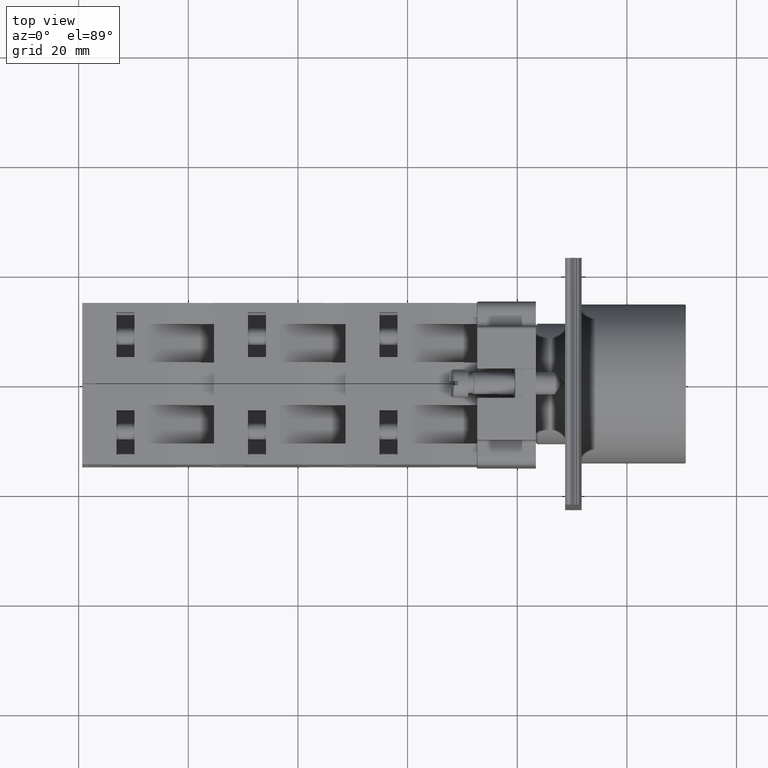
[diagram: clean part render]
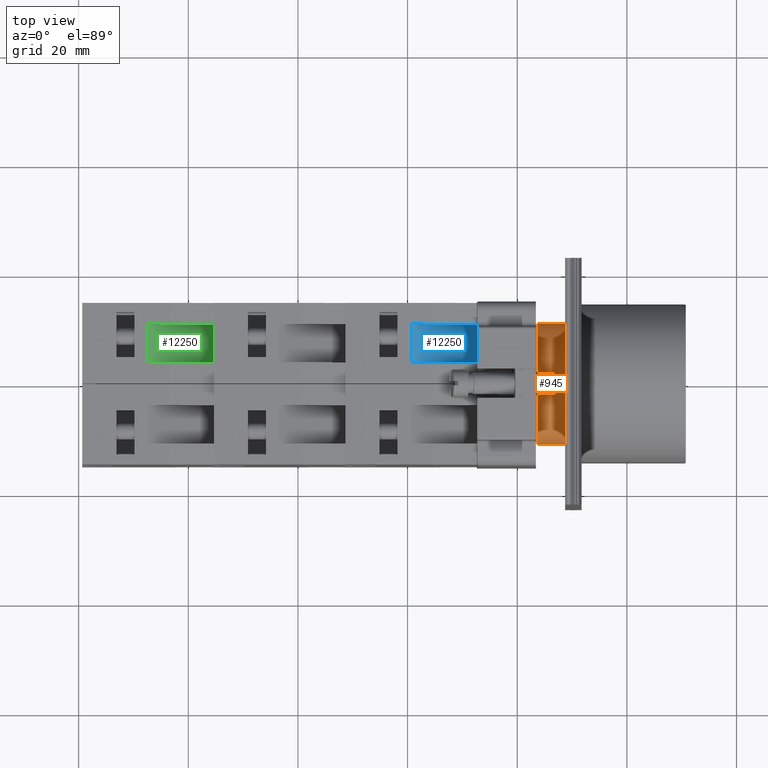
[diagram: same view with three faces highlighted in distinct colors, each labeled with its STEP entity id]
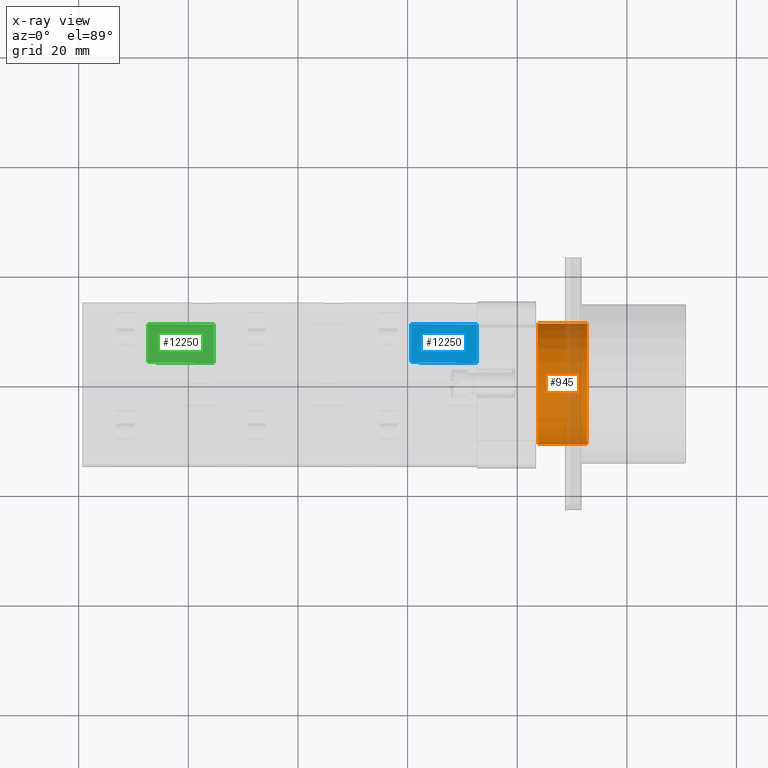
[diagram: x-ray of the same camera — body ghosted, the three highlighted faces saturated]
A machine part, top view with three faces highlighted in distinct colors.
The next image is the same camera in x-ray (body ghosted, the three faces saturated) — at least one of them is partly hidden behind the body in this view.
Their STEP definitions:

[orange] entity #945 — the highlighted cylindrical surface (bore or boss wall) has radius 11 mm, axis along (1, 0, 0).
#911=CARTESIAN_POINT('',(-16.251513745922896,10.968314320504646,0.0));
#912=VERTEX_POINT('',#911);
#913=CARTESIAN_POINT('',(-16.251513745922892,-0.031685679495356,0.0));
#914=DIRECTION('',(1.0,0.0,0.0));
#915=DIRECTION('',(0.0,1.0,0.0));
#916=AXIS2_PLACEMENT_3D('',#913,#914,#915);
#917=CIRCLE('',#916,11.0);
#918=EDGE_CURVE('',#912,#912,#917,.T.);
#926=CARTESIAN_POINT('',(-8.251513745922894,-0.031685679495354,0.0));
#927=DIRECTION('',(1.0,1.413946E-016,0.0));
#928=DIRECTION('',(0.0,1.0,0.0));
#929=AXIS2_PLACEMENT_3D('',#926,#927,#928);
#930=CYLINDRICAL_SURFACE('',#929,10.999999999999998);
#931=ORIENTED_EDGE('',*,*,#918,.T.);
#932=EDGE_LOOP('',(#931));
#933=FACE_OUTER_BOUND('',#932,.T.);
#934=CARTESIAN_POINT('',(-7.251513745922896,10.968314320504644,0.0));
#935=VERTEX_POINT('',#934);
#936=CARTESIAN_POINT('',(-7.251513745922892,-0.031685679495354,0.0));
#937=DIRECTION('',(1.0,0.0,0.0));
#938=DIRECTION('',(0.0,1.0,0.0));
#939=AXIS2_PLACEMENT_3D('',#936,#937,#938);
#940=CIRCLE('',#939,10.999999999999998);
#941=EDGE_CURVE('',#935,#935,#940,.T.);
#942=ORIENTED_EDGE('',*,*,#941,.F.);
#943=EDGE_LOOP('',(#942));
#944=FACE_BOUND('',#943,.T.);
#945=ADVANCED_FACE('',(#933,#944),#930,.T.);

[blue] entity #12250 — the highlighted face is a freeform B-spline surface patch.
#12195=CARTESIAN_POINT('',(-44.936741828918457,11.797073323279610,10.850000000000000));
#12196=VERTEX_POINT('',#12195);
#12203=CARTESIAN_POINT('',(-35.936741828918450,-0.202926676720384,10.850000000000000));
#12204=VERTEX_POINT('',#12203);
#12205=CARTESIAN_POINT('',(-35.936741828918450,-0.202926676720384,10.850000000000000));
#12206=DIRECTION('',(-0.600000000000000,0.800000000000000,0.0));
#12207=VECTOR('',#12206,15.0);
#12208=LINE('',#12205,#12207);
#12209=EDGE_CURVE('',#12204,#12196,#12208,.T.);
#12220=CARTESIAN_POINT('',(-44.936741828918464,11.797073323279616,3.850000000000000));
#12221=CARTESIAN_POINT('',(-44.936741828918464,11.797073323279616,10.850000000000001));
#12222=CARTESIAN_POINT('',(-35.936741828918443,-0.202926676720384,3.850000000000000));
#12223=CARTESIAN_POINT('',(-35.936741828918450,-0.202926676720384,10.850000000000001));
#12224=B_SPLINE_SURFACE_WITH_KNOTS('',1,1,((#12220,#12222),(#12221,#12223)),.UNSPECIFIED.,.F.,.F.,.U.,(2,2),(2,2),(0.0,7.000000000000002),(0.0,15.000000000000012),.UNSPECIFIED.);
#12225=CARTESIAN_POINT('',(-44.936741828918457,11.797073323279610,3.850000000000001));
#12226=VERTEX_POINT('',#12225);
#12227=CARTESIAN_POINT('',(-35.936741828918450,-0.202926676720384,3.850000000000001));
#12228=VERTEX_POINT('',#12227);
#12229=CARTESIAN_POINT('',(-44.936741828918457,11.797073323279610,3.850000000000001));
#12230=DIRECTION('',(0.600000000000000,-0.800000000000000,0.0));
#12231=VECTOR('',#12230,15.0);
#12232=LINE('',#12229,#12231);
#12233=EDGE_CURVE('',#12226,#12228,#12232,.T.);
#12234=ORIENTED_EDGE('',*,*,#12233,.T.);
#12235=CARTESIAN_POINT('',(-35.936741828918450,-0.202926676720384,10.850000000000000));
#12236=DIRECTION('',(0.0,0.0,-1.0));
#12237=VECTOR('',#12236,6.999999999999999);
#12238=LINE('',#12235,#12237);
#12239=EDGE_CURVE('',#12204,#12228,#12238,.T.);
#12240=ORIENTED_EDGE('',*,*,#12239,.F.);
#12241=ORIENTED_EDGE('',*,*,#12209,.T.);
#12242=CARTESIAN_POINT('',(-44.936741828918457,11.797073323279610,3.850000000000001));
#12243=DIRECTION('',(0.0,0.0,1.0));
#12244=VECTOR('',#12243,6.999999999999999);
#12245=LINE('',#12242,#12244);
#12246=EDGE_CURVE('',#12226,#12196,#12245,.T.);
#12247=ORIENTED_EDGE('',*,*,#12246,.F.);
#12248=EDGE_LOOP('',(#12234,#12240,#12241,#12247));
#12249=FACE_OUTER_BOUND('',#12248,.T.);
#12250=ADVANCED_FACE('',(#12249),#12224,.F.);

[green] entity #12250 — the highlighted face is a freeform B-spline surface patch.
#12195=CARTESIAN_POINT('',(-44.936741828918457,11.797073323279610,10.850000000000000));
#12196=VERTEX_POINT('',#12195);
#12203=CARTESIAN_POINT('',(-35.936741828918450,-0.202926676720384,10.850000000000000));
#12204=VERTEX_POINT('',#12203);
#12205=CARTESIAN_POINT('',(-35.936741828918450,-0.202926676720384,10.850000000000000));
#12206=DIRECTION('',(-0.600000000000000,0.800000000000000,0.0));
#12207=VECTOR('',#12206,15.0);
#12208=LINE('',#12205,#12207);
#12209=EDGE_CURVE('',#12204,#12196,#12208,.T.);
#12220=CARTESIAN_POINT('',(-44.936741828918464,11.797073323279616,3.850000000000000));
#12221=CARTESIAN_POINT('',(-44.936741828918464,11.797073323279616,10.850000000000001));
#12222=CARTESIAN_POINT('',(-35.936741828918443,-0.202926676720384,3.850000000000000));
#12223=CARTESIAN_POINT('',(-35.936741828918450,-0.202926676720384,10.850000000000001));
#12224=B_SPLINE_SURFACE_WITH_KNOTS('',1,1,((#12220,#12222),(#12221,#12223)),.UNSPECIFIED.,.F.,.F.,.U.,(2,2),(2,2),(0.0,7.000000000000002),(0.0,15.000000000000012),.UNSPECIFIED.);
#12225=CARTESIAN_POINT('',(-44.936741828918457,11.797073323279610,3.850000000000001));
#12226=VERTEX_POINT('',#12225);
#12227=CARTESIAN_POINT('',(-35.936741828918450,-0.202926676720384,3.850000000000001));
#12228=VERTEX_POINT('',#12227);
#12229=CARTESIAN_POINT('',(-44.936741828918457,11.797073323279610,3.850000000000001));
#12230=DIRECTION('',(0.600000000000000,-0.800000000000000,0.0));
#12231=VECTOR('',#12230,15.0);
#12232=LINE('',#12229,#12231);
#12233=EDGE_CURVE('',#12226,#12228,#12232,.T.);
#12234=ORIENTED_EDGE('',*,*,#12233,.T.);
#12235=CARTESIAN_POINT('',(-35.936741828918450,-0.202926676720384,10.850000000000000));
#12236=DIRECTION('',(0.0,0.0,-1.0));
#12237=VECTOR('',#12236,6.999999999999999);
#12238=LINE('',#12235,#12237);
#12239=EDGE_CURVE('',#12204,#12228,#12238,.T.);
#12240=ORIENTED_EDGE('',*,*,#12239,.F.);
#12241=ORIENTED_EDGE('',*,*,#12209,.T.);
#12242=CARTESIAN_POINT('',(-44.936741828918457,11.797073323279610,3.850000000000001));
#12243=DIRECTION('',(0.0,0.0,1.0));
#12244=VECTOR('',#12243,6.999999999999999);
#12245=LINE('',#12242,#12244);
#12246=EDGE_CURVE('',#12226,#12196,#12245,.T.);
#12247=ORIENTED_EDGE('',*,*,#12246,.F.);
#12248=EDGE_LOOP('',(#12234,#12240,#12241,#12247));
#12249=FACE_OUTER_BOUND('',#12248,.T.);
#12250=ADVANCED_FACE('',(#12249),#12224,.F.);